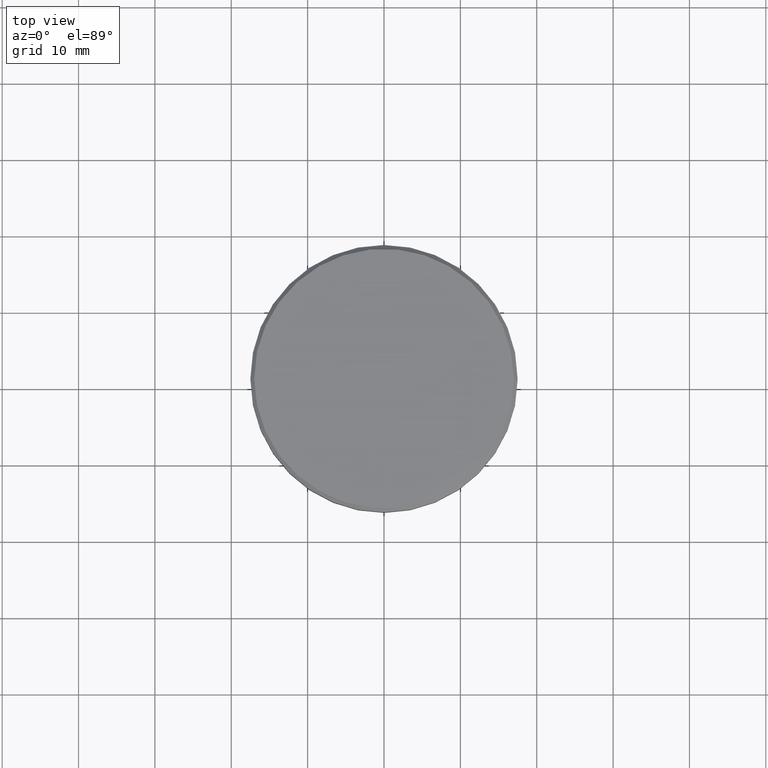
[diagram: clean part render]
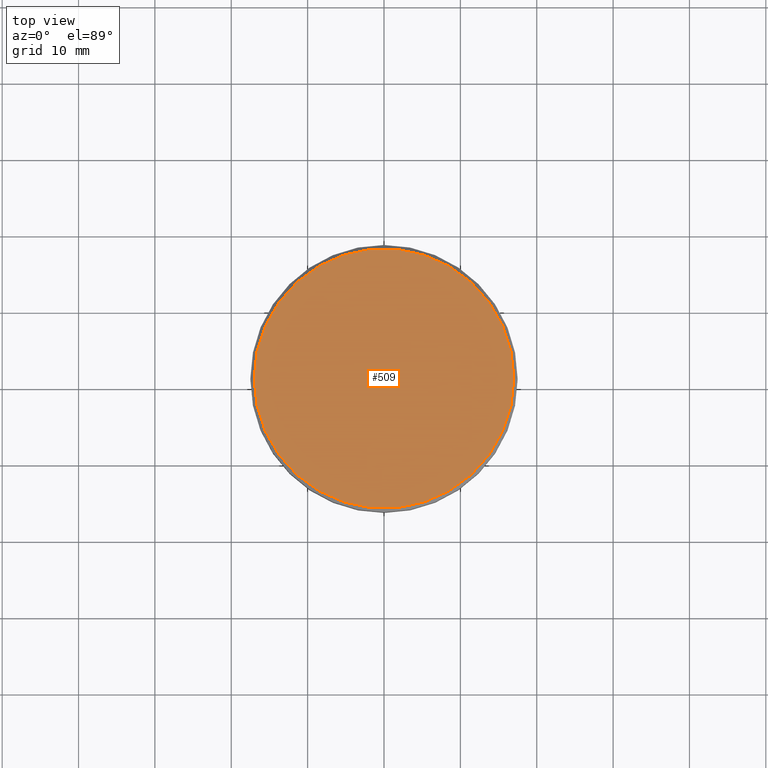
[diagram: same view with one face highlighted and labeled with its STEP entity id]
A machine part, top view. The second image highlights one B-rep face of the part: STEP entity #509.
In plain terms, the highlighted planar face has unit normal (0, -0, 1).
Its self-contained STEP definition (entity closure, byte-faithful):
#32 = DIRECTION ( 'NONE',  ( -0.000000000000000000, -0.000000000000000000, 1.000000000000000000 ) ) ;
#52 = CARTESIAN_POINT ( 'NONE',  ( 0.000000000000000000, 0.000000000000000000, 0.000000000000000000 ) ) ;
#264 = FACE_OUTER_BOUND ( 'NONE', #625, .T. ) ;
#288 = CIRCLE ( 'NONE', #550, 17.00000000000002842 ) ;
#306 = VERTEX_POINT ( 'NONE', #834 ) ;
#312 = CARTESIAN_POINT ( 'NONE',  ( -17.00000000000002842, 0.000000000000000000, 0.000000000000000000 ) ) ;
#328 = VERTEX_POINT ( 'NONE', #312 ) ;
#349 = DIRECTION ( 'NONE',  ( 1.000000000000000000, 0.000000000000000000, 0.000000000000000000 ) ) ;
#364 = ORIENTED_EDGE ( 'NONE', *, *, #578, .T. ) ;
#381 = CARTESIAN_POINT ( 'NONE',  ( 0.000000000000000000, 0.000000000000000000, 0.000000000000000000 ) ) ;
#441 = DIRECTION ( 'NONE',  ( 0.000000000000000000, -0.000000000000000000, 1.000000000000000000 ) ) ;
#462 = DIRECTION ( 'NONE',  ( 1.000000000000000000, 0.000000000000000000, 0.000000000000000000 ) ) ;
#509 = ADVANCED_FACE ( 'NONE', ( #264 ), #678, .T. ) ;
#550 = AXIS2_PLACEMENT_3D ( 'NONE', #381, #912, #462 ) ;
#578 = EDGE_CURVE ( 'NONE', #306, #328, #288, .T. ) ;
#625 = EDGE_LOOP ( 'NONE', ( #1052, #364 ) ) ;
#660 = CARTESIAN_POINT ( 'NONE',  ( 0.000000000000000000, 0.000000000000000000, 0.000000000000000000 ) ) ;
#678 = PLANE ( 'NONE',  #1043 ) ;
#688 = AXIS2_PLACEMENT_3D ( 'NONE', #660, #32, #1108 ) ;
#763 = EDGE_CURVE ( 'NONE', #328, #306, #900, .T. ) ;
#834 = CARTESIAN_POINT ( 'NONE',  ( 17.00000000000002842, 2.112515728529186039E-15, 0.000000000000000000 ) ) ;
#900 = CIRCLE ( 'NONE', #688, 17.00000000000002842 ) ;
#912 = DIRECTION ( 'NONE',  ( -0.000000000000000000, -0.000000000000000000, 1.000000000000000000 ) ) ;
#1043 = AXIS2_PLACEMENT_3D ( 'NONE', #52, #441, #349 ) ;
#1052 = ORIENTED_EDGE ( 'NONE', *, *, #763, .T. ) ;
#1108 = DIRECTION ( 'NONE',  ( 1.000000000000000000, 0.000000000000000000, 0.000000000000000000 ) ) ;